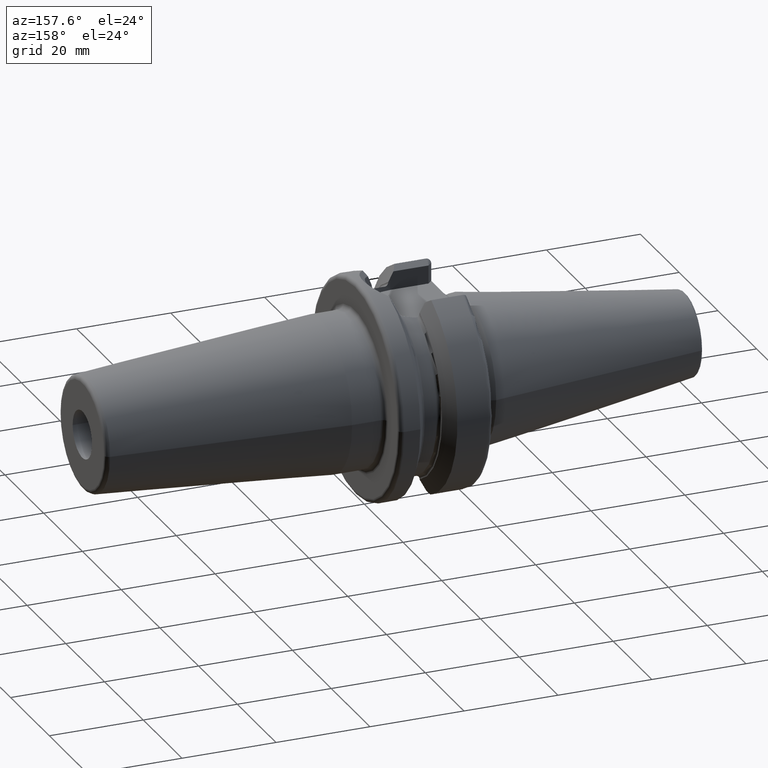
[diagram: clean part render]
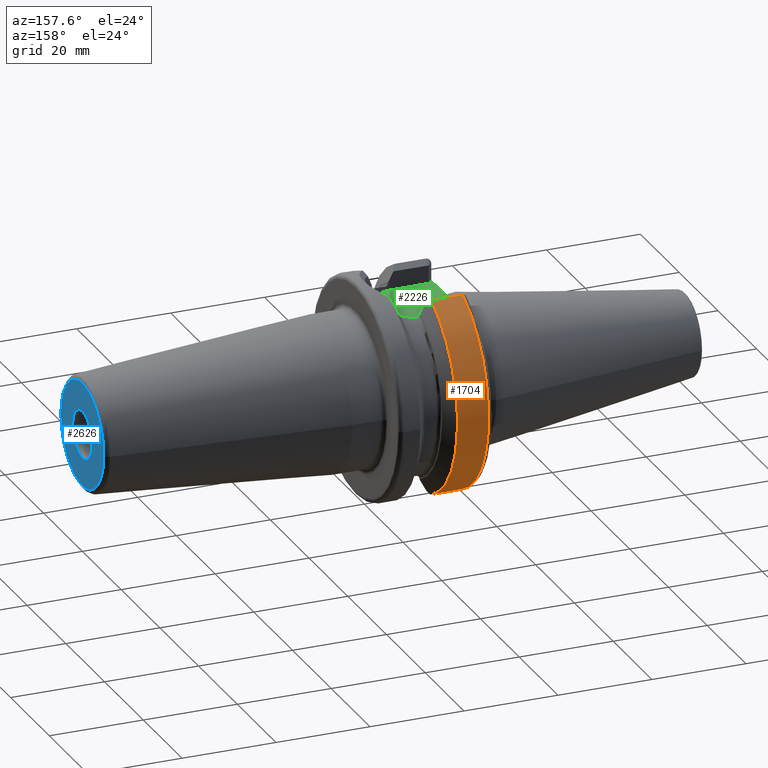
[diagram: same view with three faces highlighted in distinct colors, each labeled with its STEP entity id]
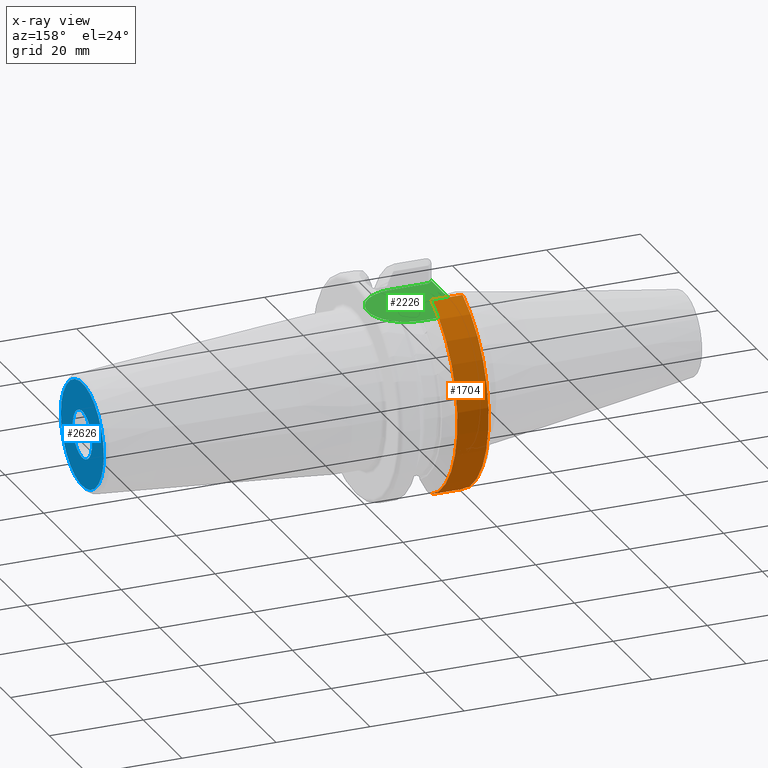
[diagram: x-ray of the same camera — body ghosted, the three highlighted faces saturated]
A machine part, auxiliary view with three faces highlighted in distinct colors.
The next image is the same camera in x-ray (body ghosted, the three faces saturated) — at least one of them is partly hidden behind the body in this view.
Their STEP definitions:

[orange] entity #1704 — the highlighted cylindrical surface (partial cylindrical patch) has radius 22.99 mm, axis along (1, 0, 0).
#208=CARTESIAN_POINT('',(3.E0,0.E0,0.E0));
#209=DIRECTION('',(-1.E0,0.E0,0.E0));
#210=DIRECTION('',(0.E0,4.135970895862E-1,9.104600197075E-1));
#211=AXIS2_PLACEMENT_3D('',#208,#209,#210);
#213=DIRECTION('',(-9.999999999953E-1,1.691137855745E-6,2.559578267209E-6));
#214=VECTOR('',#213,6.650924186073E0);
#215=CARTESIAN_POINT('',(9.650924158743E0,9.014912704843E0,-2.114879308434E1));
#216=LINE('',#215,#214);
#217=CARTESIAN_POINT('',(9.650924158743E0,0.E0,0.E0));
#218=DIRECTION('',(1.E0,0.E0,0.E0));
#219=DIRECTION('',(0.E0,3.921232146517E-1,-9.199127048428E-1));
#220=AXIS2_PLACEMENT_3D('',#217,#218,#219);
#222=DIRECTION('',(9.999999999877E-1,2.689360368038E-6,-4.174830095266E-6));
#223=VECTOR('',#222,6.650924175867E0);
#224=CARTESIAN_POINT('',(2.999999982958E0,9.508579202854E0,2.093150361955E1));
#225=LINE('',#224,#223);
#582=CARTESIAN_POINT('',(2.999999972701E0,9.014923952472E0,-2.114877606078E1));
#1326=CARTESIAN_POINT('',(9.650924158743E0,9.014912704843E0,-2.114879308434E1));
#1327=CARTESIAN_POINT('',(9.650924158743E0,9.508597089586E0,2.093147585308E1));
#1328=VERTEX_POINT('',#1326);
#1329=VERTEX_POINT('',#1327);
#1341=CARTESIAN_POINT('',(3.E0,9.508621994147E0,2.093146453960E1));
#1343=VERTEX_POINT('',#1341);
#1358=VERTEX_POINT('',#582);
#1690=CARTESIAN_POINT('',(-5.192E1,0.E0,0.E0));
#1691=DIRECTION('',(1.E0,0.E0,0.E0));
#1692=DIRECTION('',(0.E0,-1.E0,0.E0));
#1693=AXIS2_PLACEMENT_3D('',#1690,#1691,#1692);
#1694=CYLINDRICAL_SURFACE('',#1693,2.299E1);
#1696=ORIENTED_EDGE('',*,*,#1695,.T.);
#1698=ORIENTED_EDGE('',*,*,#1697,.F.);
#1699=ORIENTED_EDGE('',*,*,#1633,.T.);
#1701=ORIENTED_EDGE('',*,*,#1700,.F.);
#1702=EDGE_LOOP('',(#1696,#1698,#1699,#1701));
#1703=FACE_OUTER_BOUND('',#1702,.F.);
#1704=ADVANCED_FACE('',(#1703),#1694,.T.);
#212=CIRCLE('',#211,2.299E1);
#221=CIRCLE('',#220,2.299E1);
#1633=EDGE_CURVE('',#1328,#1329,#221,.T.);
#1695=EDGE_CURVE('',#1343,#1358,#212,.T.);
#1697=EDGE_CURVE('',#1328,#1358,#216,.T.);
#1700=EDGE_CURVE('',#1343,#1329,#225,.T.);

[blue] entity #2626 — the highlighted planar face has unit normal (1, 0, 0).
#898=CARTESIAN_POINT('',(8.E1,0.E0,0.E0));
#899=DIRECTION('',(-1.E0,0.E0,0.E0));
#900=DIRECTION('',(0.E0,-1.E0,0.E0));
#901=AXIS2_PLACEMENT_3D('',#898,#899,#900);
#903=CARTESIAN_POINT('',(8.E1,0.E0,0.E0));
#904=DIRECTION('',(-1.E0,0.E0,0.E0));
#905=DIRECTION('',(0.E0,1.E0,0.E0));
#906=AXIS2_PLACEMENT_3D('',#903,#904,#905);
#908=CARTESIAN_POINT('',(8.E1,0.E0,0.E0));
#909=DIRECTION('',(-1.E0,0.E0,0.E0));
#910=DIRECTION('',(0.E0,1.E0,0.E0));
#911=AXIS2_PLACEMENT_3D('',#908,#909,#910);
#913=CARTESIAN_POINT('',(8.E1,0.E0,0.E0));
#914=DIRECTION('',(-1.E0,0.E0,0.E0));
#915=DIRECTION('',(0.E0,-1.E0,0.E0));
#916=AXIS2_PLACEMENT_3D('',#913,#914,#915);
#1379=CARTESIAN_POINT('',(8.E1,-5.E0,0.E0));
#1380=CARTESIAN_POINT('',(8.E1,5.E0,0.E0));
#1381=VERTEX_POINT('',#1379);
#1382=VERTEX_POINT('',#1380);
#1399=CARTESIAN_POINT('',(8.E1,1.107560950834E1,0.E0));
#1400=CARTESIAN_POINT('',(8.E1,-1.107560950834E1,0.E0));
#1401=VERTEX_POINT('',#1399);
#1402=VERTEX_POINT('',#1400);
#2611=CARTESIAN_POINT('',(8.E1,0.E0,0.E0));
#2612=DIRECTION('',(1.E0,0.E0,0.E0));
#2613=DIRECTION('',(0.E0,-1.E0,0.E0));
#2614=AXIS2_PLACEMENT_3D('',#2611,#2612,#2613);
#2615=PLANE('',#2614);
#2616=ORIENTED_EDGE('',*,*,#2605,.T.);
#2617=ORIENTED_EDGE('',*,*,#2591,.T.);
#2618=EDGE_LOOP('',(#2616,#2617));
#2619=FACE_OUTER_BOUND('',#2618,.F.);
#2621=ORIENTED_EDGE('',*,*,#2620,.F.);
#2623=ORIENTED_EDGE('',*,*,#2622,.F.);
#2624=EDGE_LOOP('',(#2621,#2623));
#2625=FACE_BOUND('',#2624,.F.);
#2626=ADVANCED_FACE('',(#2619,#2625),#2615,.T.);
#902=CIRCLE('',#901,5.E0);
#907=CIRCLE('',#906,5.E0);
#912=CIRCLE('',#911,1.107560950834E1);
#917=CIRCLE('',#916,1.107560950834E1);
#2591=EDGE_CURVE('',#1402,#1401,#917,.T.);
#2605=EDGE_CURVE('',#1401,#1402,#912,.T.);
#2620=EDGE_CURVE('',#1381,#1382,#902,.T.);
#2622=EDGE_CURVE('',#1382,#1381,#907,.T.);

[green] entity #2226 — the highlighted planar face has unit normal (0, 0, 1).
#666=DIRECTION('',(1.E0,0.E0,0.E0));
#667=VECTOR('',#666,8.155E0);
#668=CARTESIAN_POINT('',(3.E0,-8.095E0,1.615E1));
#669=LINE('',#668,#667);
#670=DIRECTION('',(0.E0,1.E0,0.E0));
#671=VECTOR('',#670,6.389796680469E0);
#672=CARTESIAN_POINT('',(2.E0,-9.095E0,1.615E1));
#673=LINE('',#672,#671);
#674=DIRECTION('',(0.E0,1.E0,0.E0));
#675=VECTOR('',#674,6.389796680469E0);
#676=CARTESIAN_POINT('',(2.E0,2.705203319531E0,1.615E1));
#677=LINE('',#676,#675);
#678=DIRECTION('',(-1.E0,0.E0,0.E0));
#679=VECTOR('',#678,8.155E0);
#680=CARTESIAN_POINT('',(1.1155E1,8.095E0,1.615E1));
#681=LINE('',#680,#679);
#682=CARTESIAN_POINT('',(1.1155E1,0.E0,1.615E1));
#683=DIRECTION('',(0.E0,0.E0,1.E0));
#684=DIRECTION('',(0.E0,-1.E0,0.E0));
#685=AXIS2_PLACEMENT_3D('',#682,#683,#684);
#691=DIRECTION('',(7.071067811865E-1,7.071067811865E-1,0.E0));
#692=VECTOR('',#691,1.414213562373E0);
#693=CARTESIAN_POINT('',(2.E0,-9.095E0,1.615E1));
#694=LINE('',#693,#692);
#700=CARTESIAN_POINT('',(2.E0,-2.705203319531E0,1.615E1));
#701=CARTESIAN_POINT('',(2.E0,-2.447526606637E0,1.615E1));
#702=CARTESIAN_POINT('',(1.994666808080E0,-1.932209003238E0,1.615E1));
#703=CARTESIAN_POINT('',(1.982373677751E0,-1.159353659083E0,1.615E1));
#704=CARTESIAN_POINT('',(1.974023153496E0,-3.864772813160E-1,1.615E1));
#705=CARTESIAN_POINT('',(1.974022947076E0,3.864455623798E-1,1.615E1));
#706=CARTESIAN_POINT('',(1.982373315251E0,1.159330607264E0,1.615E1));
#707=CARTESIAN_POINT('',(1.994666672292E0,1.932198796230E0,1.615E1));
#708=CARTESIAN_POINT('',(2.E0,2.447523240700E0,1.615E1));
#709=CARTESIAN_POINT('',(2.E0,2.705203319531E0,1.615E1));
#716=DIRECTION('',(-7.071067811865E-1,7.071067811865E-1,0.E0));
#717=VECTOR('',#716,1.414213562373E0);
#718=CARTESIAN_POINT('',(3.E0,8.095E0,1.615E1));
#719=LINE('',#718,#717);
#1294=CARTESIAN_POINT('',(1.1155E1,-8.095E0,1.615E1));
#1295=CARTESIAN_POINT('',(1.1155E1,8.095E0,1.615E1));
#1296=VERTEX_POINT('',#1294);
#1297=VERTEX_POINT('',#1295);
#1298=CARTESIAN_POINT('',(2.E0,2.705203319531E0,1.615E1));
#1299=VERTEX_POINT('',#1298);
#1300=CARTESIAN_POINT('',(2.E0,-2.705203319531E0,1.615E1));
#1301=VERTEX_POINT('',#1300);
#1331=CARTESIAN_POINT('',(3.E0,-8.095E0,1.615E1));
#1333=VERTEX_POINT('',#1331);
#1335=CARTESIAN_POINT('',(2.E0,-9.095E0,1.615E1));
#1337=VERTEX_POINT('',#1335);
#1344=CARTESIAN_POINT('',(2.E0,9.095E0,1.615E1));
#1345=VERTEX_POINT('',#1344);
#1346=CARTESIAN_POINT('',(3.E0,8.095E0,1.615E1));
#1348=VERTEX_POINT('',#1346);
#2208=CARTESIAN_POINT('',(0.E0,0.E0,1.615E1));
#2209=DIRECTION('',(0.E0,0.E0,1.E0));
#2210=DIRECTION('',(1.E0,0.E0,0.E0));
#2211=AXIS2_PLACEMENT_3D('',#2208,#2209,#2210);
#2212=PLANE('',#2211);
#2213=ORIENTED_EDGE('',*,*,#1979,.F.);
#2215=ORIENTED_EDGE('',*,*,#2214,.F.);
#2216=ORIENTED_EDGE('',*,*,#1585,.T.);
#2218=ORIENTED_EDGE('',*,*,#2217,.T.);
#2219=ORIENTED_EDGE('',*,*,#1563,.T.);
#2221=ORIENTED_EDGE('',*,*,#2220,.F.);
#2222=ORIENTED_EDGE('',*,*,#2200,.F.);
#2223=ORIENTED_EDGE('',*,*,#1948,.F.);
#2224=EDGE_LOOP('',(#2213,#2215,#2216,#2218,#2219,#2221,#2222,#2223));
#2225=FACE_OUTER_BOUND('',#2224,.F.);
#2226=ADVANCED_FACE('',(#2225),#2212,.T.);
#686=CIRCLE('',#685,8.095E0);
#710=B_SPLINE_CURVE_WITH_KNOTS('',3,(#700,#701,#702,#703,#704,#705,#706,#707,
#708,#709),.UNSPECIFIED.,.F.,.F.,(4,1,1,1,1,1,1,4),(0.E0,1.428571428571E-1,
2.857142857143E-1,4.285714285714E-1,5.714285714286E-1,7.142857142857E-1,
8.571428571429E-1,1.E0),.UNSPECIFIED.);
#1563=EDGE_CURVE('',#1299,#1345,#677,.T.);
#1585=EDGE_CURVE('',#1337,#1301,#673,.T.);
#1948=EDGE_CURVE('',#1296,#1297,#686,.T.);
#1979=EDGE_CURVE('',#1333,#1296,#669,.T.);
#2200=EDGE_CURVE('',#1297,#1348,#681,.T.);
#2214=EDGE_CURVE('',#1337,#1333,#694,.T.);
#2217=EDGE_CURVE('',#1301,#1299,#710,.T.);
#2220=EDGE_CURVE('',#1348,#1345,#719,.T.);